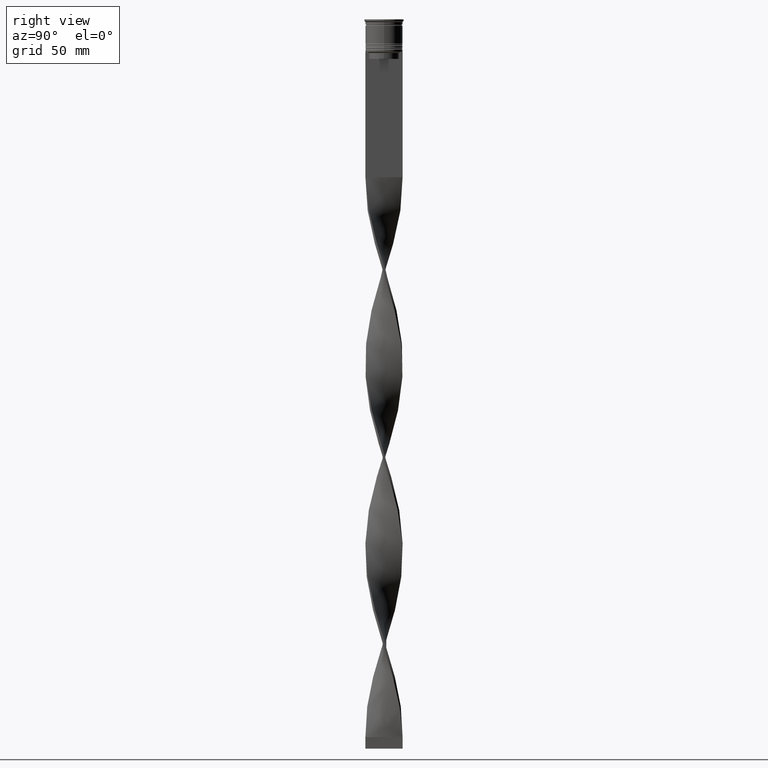
[diagram: clean part render]
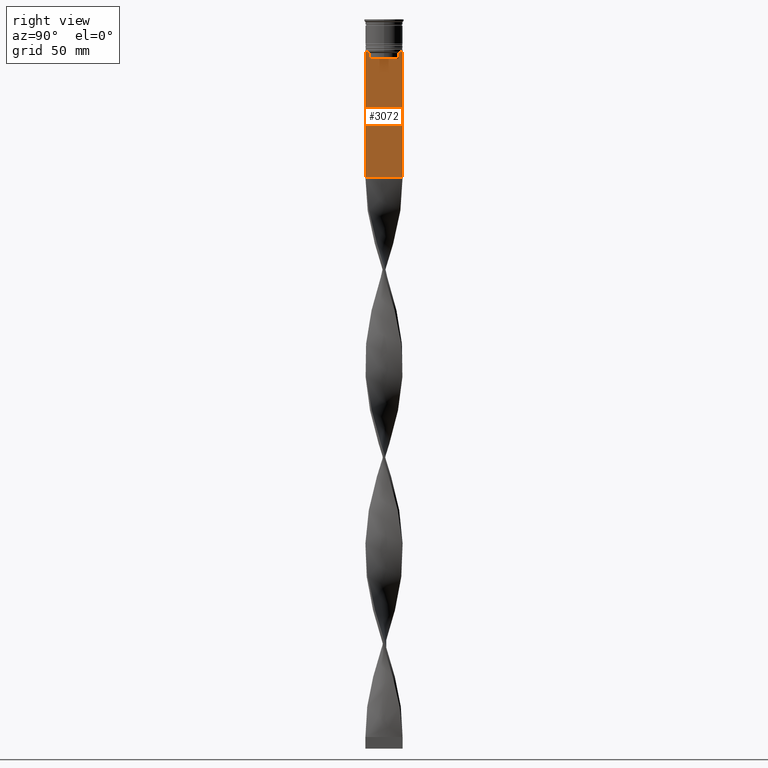
[diagram: same view with one face highlighted and labeled with its STEP entity id]
A machine part, right view. The second image highlights one B-rep face of the part: STEP entity #3072.
In plain terms, the highlighted planar face has unit normal (-1, 0, 0).
Its self-contained STEP definition (entity closure, byte-faithful):
#52 = CARTESIAN_POINT ( 'NONE',  ( 0.5000000000000001110, 6.399999999999999467, -17.00000000000000000 ) ) ;
#147 = CARTESIAN_POINT ( 'NONE',  ( 0.5000000000000001110, -8.000000000000003553, -14.00000000000000178 ) ) ;
#186 = CARTESIAN_POINT ( 'NONE',  ( 0.5000000000000001110, -6.380438856379708312, 0.000000000000000000 ) ) ;
#210 = CARTESIAN_POINT ( 'NONE',  ( 0.5000000000000001110, -6.714736947305993908, -14.16668390685738821 ) ) ;
#223 = CARTESIAN_POINT ( 'NONE',  ( 0.5000000000000001110, 6.881860213634098500, -14.00000000000000178 ) ) ;
#268 = CARTESIAN_POINT ( 'NONE',  ( 0.5000000000000001110, 6.380438856379708312, -14.50000000000000000 ) ) ;
#345 = EDGE_CURVE ( 'NONE', #1044, #3576, #2182, .T. ) ;
#484 = LINE ( 'NONE', #1496, #1835 ) ;
#512 = VECTOR ( 'NONE', #859, 1000.000000000000000 ) ;
#515 = DIRECTION ( 'NONE',  ( 0.000000000000000000, 0.000000000000000000, 1.000000000000000000 ) ) ;
#537 = CARTESIAN_POINT ( 'NONE',  ( 0.5000000000000001110, -8.000000000000003553, -14.00000000000000178 ) ) ;
#544 = CARTESIAN_POINT ( 'NONE',  ( 0.5000000000000001110, -6.881860213634098500, -14.00000000000000178 ) ) ;
#550 = VERTEX_POINT ( 'NONE', #628 ) ;
#587 = ORIENTED_EDGE ( 'NONE', *, *, #345, .T. ) ;
#626 = CARTESIAN_POINT ( 'NONE',  ( 0.5000000000000001110, 6.380438856379708312, -17.00000000000000000 ) ) ;
#628 = CARTESIAN_POINT ( 'NONE',  ( 0.5000000000000001110, -6.881860213634098500, -14.00000000000000178 ) ) ;
#631 = VECTOR ( 'NONE', #1806, 1000.000000000000000 ) ;
#665 = LINE ( 'NONE', #3581, #2832 ) ;
#666 = VERTEX_POINT ( 'NONE', #1232 ) ;
#708 = EDGE_CURVE ( 'NONE', #3576, #2921, #3237, .T. ) ;
#760 = VERTEX_POINT ( 'NONE', #2325 ) ;
#786 = DIRECTION ( 'NONE',  ( 0.000000000000000000, 0.000000000000000000, -1.000000000000000000 ) ) ;
#833 = EDGE_CURVE ( 'NONE', #1743, #760, #3565, .T. ) ;
#859 = DIRECTION ( 'NONE',  ( 0.000000000000000000, -1.000000000000000000, 0.000000000000000000 ) ) ;
#879 = DIRECTION ( 'NONE',  ( 0.000000000000000000, -1.000000000000000000, 0.000000000000000000 ) ) ;
#909 = PLANE ( 'NONE',  #3233 ) ;
#1012 = CARTESIAN_POINT ( 'NONE',  ( 0.5000000000000001110, 7.999999999999996447, -14.00000000000000178 ) ) ;
#1014 = EDGE_CURVE ( 'NONE', #666, #550, #3381, .T. ) ;
#1019 = ORIENTED_EDGE ( 'NONE', *, *, #1111, .F. ) ;
#1044 = VERTEX_POINT ( 'NONE', #268 ) ;
#1045 = EDGE_CURVE ( 'NONE', #3604, #2551, #1526, .T. ) ;
#1106 = ORIENTED_EDGE ( 'NONE', *, *, #2210, .T. ) ;
#1111 = EDGE_CURVE ( 'NONE', #1402, #1284, #3768, .T. ) ;
#1187 = CARTESIAN_POINT ( 'NONE',  ( 0.5000000000000001110, -6.380438856379708312, -14.50000000000000000 ) ) ;
#1232 = CARTESIAN_POINT ( 'NONE',  ( 0.5000000000000001110, -6.380438856379708312, -14.50000000000000000 ) ) ;
#1284 = VERTEX_POINT ( 'NONE', #1322 ) ;
#1322 = CARTESIAN_POINT ( 'NONE',  ( 0.5000000000000001110, 7.999999999999996447, -68.00000000000000000 ) ) ;
#1326 = CARTESIAN_POINT ( 'NONE',  ( 0.5000000000000001110, 6.881860213634098500, -14.00000000000000178 ) ) ;
#1376 = ORIENTED_EDGE ( 'NONE', *, *, #708, .T. ) ;
#1402 = VERTEX_POINT ( 'NONE', #1012 ) ;
#1454 = DIRECTION ( 'NONE',  ( 0.000000000000000000, 0.000000000000000000, -1.000000000000000000 ) ) ;
#1496 = CARTESIAN_POINT ( 'NONE',  ( 0.5000000000000001110, -8.000000000000003553, -14.00000000000000178 ) ) ;
#1501 = CARTESIAN_POINT ( 'NONE',  ( 0.5000000000000001110, -8.000000000000003553, 2.031219541881394530 ) ) ;
#1520 = DIRECTION ( 'NONE',  ( -1.000000000000000000, 0.000000000000000000, 0.000000000000000000 ) ) ;
#1526 = LINE ( 'NONE', #537, #3545 ) ;
#1743 = VERTEX_POINT ( 'NONE', #1809 ) ;
#1755 = CARTESIAN_POINT ( 'NONE',  ( 0.5000000000000001110, -8.000000000000003553, -68.00000000000000000 ) ) ;
#1804 = CARTESIAN_POINT ( 'NONE',  ( 0.5000000000000001110, 7.999999999999996447, 2.031219541881394530 ) ) ;
#1806 = DIRECTION ( 'NONE',  ( -0.000000000000000000, -0.000000000000000000, 1.000000000000000000 ) ) ;
#1809 = CARTESIAN_POINT ( 'NONE',  ( 0.5000000000000001110, -7.884161337770806632, -14.00000000000000178 ) ) ;
#1811 = CARTESIAN_POINT ( 'NONE',  ( 0.5000000000000001110, -6.547597841511247019, -14.33335192438652150 ) ) ;
#1835 = VECTOR ( 'NONE', #879, 1000.000000000000000 ) ;
#1854 = DIRECTION ( 'NONE',  ( 0.000000000000000000, -1.000000000000000000, 0.000000000000000000 ) ) ;
#1879 = EDGE_CURVE ( 'NONE', #2551, #1044, #3571, .T. ) ;
#1882 = DIRECTION ( 'NONE',  ( 0.000000000000000000, -1.000000000000000000, 0.000000000000000000 ) ) ;
#2004 = EDGE_CURVE ( 'NONE', #2921, #666, #2418, .T. ) ;
#2160 = FACE_OUTER_BOUND ( 'NONE', #2670, .T. ) ;
#2182 = LINE ( 'NONE', #4064, #2292 ) ;
#2207 = DIRECTION ( 'NONE',  ( 0.000000000000000000, 1.000000000000000000, 0.000000000000000000 ) ) ;
#2210 = EDGE_CURVE ( 'NONE', #760, #3069, #665, .T. ) ;
#2292 = VECTOR ( 'NONE', #1454, 1000.000000000000000 ) ;
#2325 = CARTESIAN_POINT ( 'NONE',  ( 0.5000000000000001110, -8.000000000000003553, -14.00000000000000178 ) ) ;
#2353 = ORIENTED_EDGE ( 'NONE', *, *, #3982, .T. ) ;
#2358 = VECTOR ( 'NONE', #3875, 1000.000000000000000 ) ;
#2361 = ORIENTED_EDGE ( 'NONE', *, *, #3306, .T. ) ;
#2418 = LINE ( 'NONE', #186, #631 ) ;
#2448 = VECTOR ( 'NONE', #2207, 1000.000000000000000 ) ;
#2454 = CARTESIAN_POINT ( 'NONE',  ( 0.5000000000000001110, -8.000000000000003553, -14.00000000000000178 ) ) ;
#2549 = CARTESIAN_POINT ( 'NONE',  ( 0.5000000000000001110, 7.884161337770806632, -14.00000000000000178 ) ) ;
#2551 = VERTEX_POINT ( 'NONE', #223 ) ;
#2574 = ORIENTED_EDGE ( 'NONE', *, *, #3390, .T. ) ;
#2605 = CARTESIAN_POINT ( 'NONE',  ( 0.5000000000000001110, 6.714736947114692711, -14.16668390704818847 ) ) ;
#2644 = CARTESIAN_POINT ( 'NONE',  ( 0.5000000000000001110, -6.380438856379708312, -17.00000000000000000 ) ) ;
#2651 = ORIENTED_EDGE ( 'NONE', *, *, #833, .T. ) ;
#2670 = EDGE_LOOP ( 'NONE', ( #2940, #3110, #587, #1376, #3075, #4050, #2361, #2651, #1106, #2353, #1019, #2574 ) ) ;
#2792 = LINE ( 'NONE', #3415, #2448 ) ;
#2832 = VECTOR ( 'NONE', #786, 1000.000000000000000 ) ;
#2921 = VERTEX_POINT ( 'NONE', #2644 ) ;
#2940 = ORIENTED_EDGE ( 'NONE', *, *, #1045, .T. ) ;
#3069 = VERTEX_POINT ( 'NONE', #1755 ) ;
#3072 = ADVANCED_FACE ( 'NONE', ( #2160 ), #909, .F. ) ;
#3075 = ORIENTED_EDGE ( 'NONE', *, *, #2004, .T. ) ;
#3110 = ORIENTED_EDGE ( 'NONE', *, *, #1879, .T. ) ;
#3233 = AXIS2_PLACEMENT_3D ( 'NONE', #1501, #1520, #515 ) ;
#3237 = LINE ( 'NONE', #52, #3685 ) ;
#3306 = EDGE_CURVE ( 'NONE', #550, #1743, #484, .T. ) ;
#3381 = B_SPLINE_CURVE_WITH_KNOTS ( 'NONE', 3,
 ( #1187, #1811, #210, #544 ),
 .UNSPECIFIED., .F., .F.,
 ( 4, 4 ),
 ( 0.02996184199614751464, 0.03067452609193705923 ),
 .UNSPECIFIED. ) ;
#3390 = EDGE_CURVE ( 'NONE', #1402, #3604, #3720, .T. ) ;
#3415 = CARTESIAN_POINT ( 'NONE',  ( 0.5000000000000001110, -8.000000000000003553, -68.00000000000000000 ) ) ;
#3545 = VECTOR ( 'NONE', #1854, 1000.000000000000000 ) ;
#3550 = VECTOR ( 'NONE', #3987, 1000.000000000000000 ) ;
#3565 = LINE ( 'NONE', #147, #2358 ) ;
#3571 = B_SPLINE_CURVE_WITH_KNOTS ( 'NONE', 3,
 ( #1326, #2605, #3868, #3595 ),
 .UNSPECIFIED., .F., .F.,
 ( 4, 4 ),
 ( 0.01172465562756038263, 0.01243276816391822651 ),
 .UNSPECIFIED. ) ;
#3576 = VERTEX_POINT ( 'NONE', #626 ) ;
#3581 = CARTESIAN_POINT ( 'NONE',  ( 0.5000000000000001110, -8.000000000000003553, 2.031219541881394530 ) ) ;
#3595 = CARTESIAN_POINT ( 'NONE',  ( 0.5000000000000001110, 6.380438856379708312, -14.50000000000000000 ) ) ;
#3604 = VERTEX_POINT ( 'NONE', #2549 ) ;
#3685 = VECTOR ( 'NONE', #1882, 1000.000000000000000 ) ;
#3720 = LINE ( 'NONE', #2454, #512 ) ;
#3768 = LINE ( 'NONE', #1804, #3550 ) ;
#3868 = CARTESIAN_POINT ( 'NONE',  ( 0.5000000000000001110, 6.547597841304911626, -14.33335192459222718 ) ) ;
#3875 = DIRECTION ( 'NONE',  ( 0.000000000000000000, -1.000000000000000000, 0.000000000000000000 ) ) ;
#3982 = EDGE_CURVE ( 'NONE', #3069, #1284, #2792, .T. ) ;
#3987 = DIRECTION ( 'NONE',  ( 0.000000000000000000, 0.000000000000000000, -1.000000000000000000 ) ) ;
#4050 = ORIENTED_EDGE ( 'NONE', *, *, #1014, .T. ) ;
#4064 = CARTESIAN_POINT ( 'NONE',  ( 0.5000000000000001110, 6.380438856379708312, 0.000000000000000000 ) ) ;